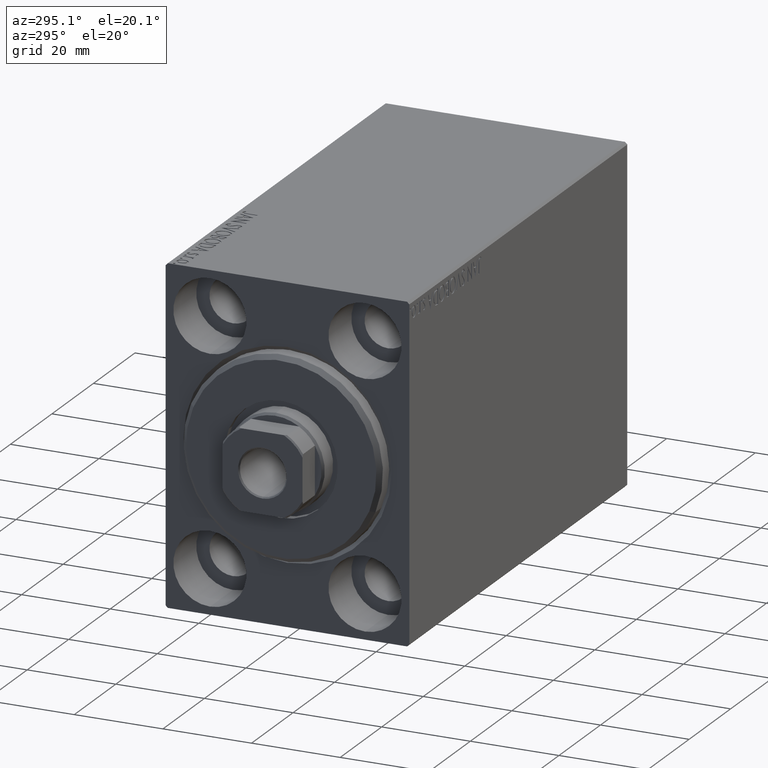
[diagram: clean part render]
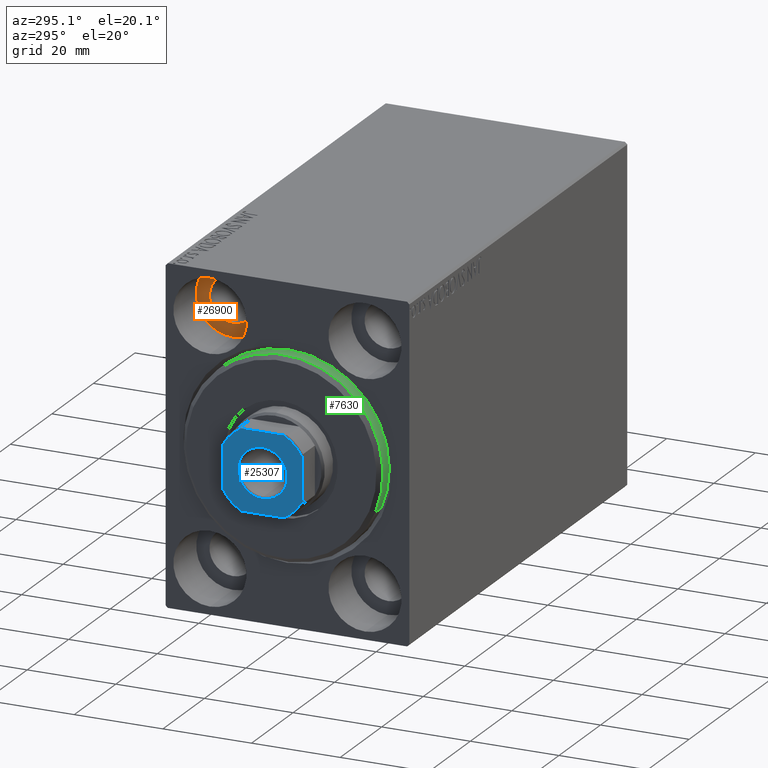
[diagram: same view with three faces highlighted in distinct colors, each labeled with its STEP entity id]
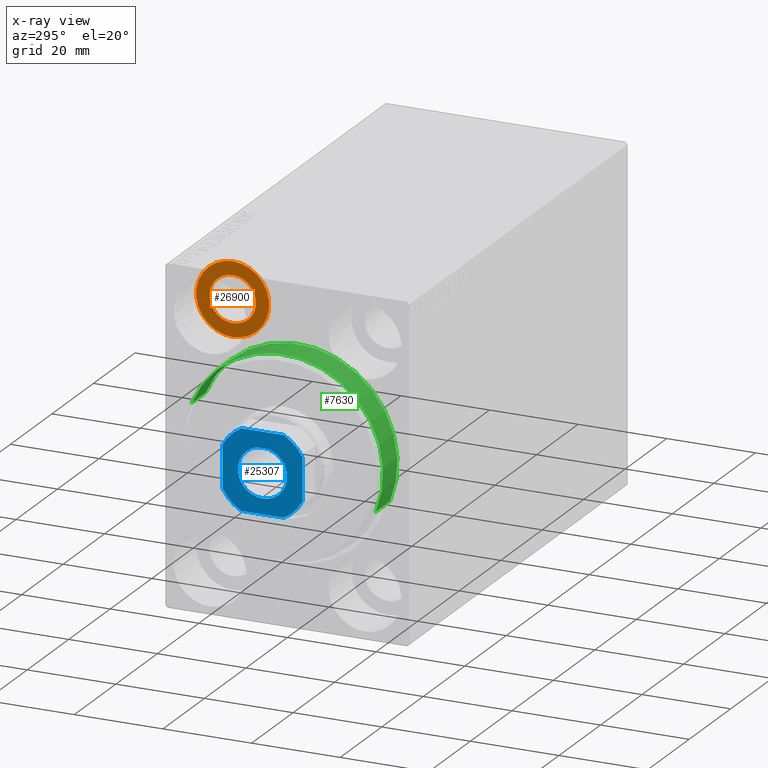
[diagram: x-ray of the same camera — body ghosted, the three highlighted faces saturated]
A machine part, auxiliary view with three faces highlighted in distinct colors.
The next image is the same camera in x-ray (body ghosted, the three faces saturated) — at least one of them is partly hidden behind the body in this view.
Their STEP definitions:

[orange] entity #26900 — the highlighted planar face has unit normal (-1, 0, 0).
#612 = VERTEX_POINT ( 'NONE', #30380 ) ;
#954 = DIRECTION ( 'NONE',  ( -1.000000000000000000, 0.000000000000000000, 0.000000000000000000 ) ) ;
#1435 = EDGE_CURVE ( 'NONE', #25125, #43047, #12740, .T. ) ;
#3131 = ORIENTED_EDGE ( 'NONE', *, *, #1435, .T. ) ;
#4237 = ORIENTED_EDGE ( 'NONE', *, *, #28508, .F. ) ;
#6473 = CIRCLE ( 'NONE', #9955, 5.249999999999997335 ) ;
#6583 = DIRECTION ( 'NONE',  ( 0.000000000000000000, 0.000000000000000000, 1.000000000000000000 ) ) ;
#9287 = CARTESIAN_POINT ( 'NONE',  ( 10.99999999999999645, 17.50000000000000355, 22.25000000000000000 ) ) ;
#9955 = AXIS2_PLACEMENT_3D ( 'NONE', #18353, #24337, #37763 ) ;
#10046 = DIRECTION ( 'NONE',  ( 0.000000000000000000, 0.000000000000000000, 1.000000000000000000 ) ) ;
#11295 = AXIS2_PLACEMENT_3D ( 'NONE', #20205, #29063, #10046 ) ;
#11589 = CARTESIAN_POINT ( 'NONE',  ( 11.00000000000000000, 17.50000000000000355, 35.74999999999999289 ) ) ;
#12740 = CIRCLE ( 'NONE', #26128, 8.249999999999992895 ) ;
#13749 = DIRECTION ( 'NONE',  ( 0.000000000000000000, 0.000000000000000000, 1.000000000000000000 ) ) ;
#15365 = EDGE_CURVE ( 'NONE', #43047, #25125, #20125, .T. ) ;
#16673 = FACE_BOUND ( 'NONE', #43281, .T. ) ;
#18353 = CARTESIAN_POINT ( 'NONE',  ( 10.99999999999999645, 17.50000000000000355, 27.49999999999999645 ) ) ;
#18657 = VERTEX_POINT ( 'NONE', #9287 ) ;
#20125 = CIRCLE ( 'NONE', #34188, 8.249999999999992895 ) ;
#20205 = CARTESIAN_POINT ( 'NONE',  ( 11.00000000000000000, 0.000000000000000000, 0.000000000000000000 ) ) ;
#20414 = EDGE_LOOP ( 'NONE', ( #3131, #25504 ) ) ;
#22676 = CARTESIAN_POINT ( 'NONE',  ( 10.99999999999999645, 17.50000000000000355, 27.49999999999999645 ) ) ;
#22906 = DIRECTION ( 'NONE',  ( -1.000000000000000000, 0.000000000000000000, 0.000000000000000000 ) ) ;
#23517 = FACE_OUTER_BOUND ( 'NONE', #20414, .T. ) ;
#24221 = DIRECTION ( 'NONE',  ( -1.000000000000000000, 0.000000000000000000, 0.000000000000000000 ) ) ;
#24337 = DIRECTION ( 'NONE',  ( -1.000000000000000000, 0.000000000000000000, 0.000000000000000000 ) ) ;
#25125 = VERTEX_POINT ( 'NONE', #11589 ) ;
#25504 = ORIENTED_EDGE ( 'NONE', *, *, #15365, .T. ) ;
#26128 = AXIS2_PLACEMENT_3D ( 'NONE', #34661, #954, #13749 ) ;
#26263 = CARTESIAN_POINT ( 'NONE',  ( 11.00000000000000000, 17.50000000000000355, 27.49999999999999645 ) ) ;
#26570 = CARTESIAN_POINT ( 'NONE',  ( 11.00000000000000000, 17.50000000000000355, 19.25000000000000000 ) ) ;
#26900 = ADVANCED_FACE ( 'NONE', ( #16673, #23517 ), #28844, .T. ) ;
#28508 = EDGE_CURVE ( 'NONE', #18657, #612, #6473, .T. ) ;
#28844 = PLANE ( 'NONE',  #11295 ) ;
#29063 = DIRECTION ( 'NONE',  ( -1.000000000000000000, 0.000000000000000000, 0.000000000000000000 ) ) ;
#30380 = CARTESIAN_POINT ( 'NONE',  ( 10.99999999999999645, 17.50000000000000355, 32.74999999999999289 ) ) ;
#34188 = AXIS2_PLACEMENT_3D ( 'NONE', #26263, #24221, #39477 ) ;
#34661 = CARTESIAN_POINT ( 'NONE',  ( 11.00000000000000000, 17.50000000000000355, 27.49999999999999645 ) ) ;
#35624 = ORIENTED_EDGE ( 'NONE', *, *, #40026, .F. ) ;
#37763 = DIRECTION ( 'NONE',  ( 0.000000000000000000, 0.000000000000000000, 1.000000000000000000 ) ) ;
#39477 = DIRECTION ( 'NONE',  ( 0.000000000000000000, 0.000000000000000000, 1.000000000000000000 ) ) ;
#39677 = CIRCLE ( 'NONE', #40380, 5.249999999999997335 ) ;
#40026 = EDGE_CURVE ( 'NONE', #612, #18657, #39677, .T. ) ;
#40380 = AXIS2_PLACEMENT_3D ( 'NONE', #22676, #22906, #6583 ) ;
#43047 = VERTEX_POINT ( 'NONE', #26570 ) ;
#43281 = EDGE_LOOP ( 'NONE', ( #35624, #4237 ) ) ;

[blue] entity #25307 — the highlighted planar face has unit normal (-1, 0, 0).
#274 = DIRECTION ( 'NONE',  ( -0.000000000000000000, 0.000000000000000000, 1.000000000000000000 ) ) ;
#1874 = DIRECTION ( 'NONE',  ( 1.000000000000000000, 0.000000000000000000, 0.000000000000000000 ) ) ;
#2128 = VERTEX_POINT ( 'NONE', #4592 ) ;
#3076 = AXIS2_PLACEMENT_3D ( 'NONE', #24730, #14578, #8834 ) ;
#3945 = DIRECTION ( 'NONE',  ( 1.000000000000000000, 0.000000000000000000, 0.000000000000000000 ) ) ;
#4029 = EDGE_CURVE ( 'NONE', #9602, #25330, #12808, .T. ) ;
#4187 = VERTEX_POINT ( 'NONE', #34777 ) ;
#4215 = CIRCLE ( 'NONE', #41469, 10.19999999999997442 ) ;
#4447 = AXIS2_PLACEMENT_3D ( 'NONE', #8234, #11966, #22342 ) ;
#4592 = CARTESIAN_POINT ( 'NONE',  ( 9.000000000000001776, -4.799999999999946532, 107.0000000000000142 ) ) ;
#4689 = CARTESIAN_POINT ( 'NONE',  ( -8.999999999999998224, -9.000000000000001776, 107.0000000000000142 ) ) ;
#5046 = CARTESIAN_POINT ( 'NONE',  ( 8.999999999999998224, 8.999999999999998224, 107.0000000000000142 ) ) ;
#5579 = DIRECTION ( 'NONE',  ( 1.927470528863119049E-16, -1.000000000000000000, 0.000000000000000000 ) ) ;
#6738 = DIRECTION ( 'NONE',  ( -0.000000000000000000, 0.000000000000000000, 1.000000000000000000 ) ) ;
#6843 = EDGE_CURVE ( 'NONE', #2128, #19833, #28185, .T. ) ;
#6896 = VERTEX_POINT ( 'NONE', #32811 ) ;
#7461 = CARTESIAN_POINT ( 'NONE',  ( 0.000000000000000000, 0.000000000000000000, 107.0000000000000142 ) ) ;
#7927 = VECTOR ( 'NONE', #18497, 1000.000000000000000 ) ;
#8234 = CARTESIAN_POINT ( 'NONE',  ( 0.000000000000000000, 0.000000000000000000, 107.0000000000000142 ) ) ;
#8413 = EDGE_CURVE ( 'NONE', #32368, #12194, #28477, .T. ) ;
#8834 = DIRECTION ( 'NONE',  ( 1.000000000000000000, 0.000000000000000000, 0.000000000000000000 ) ) ;
#9602 = VERTEX_POINT ( 'NONE', #29535 ) ;
#10890 = AXIS2_PLACEMENT_3D ( 'NONE', #11047, #274, #13714 ) ;
#11047 = CARTESIAN_POINT ( 'NONE',  ( 0.000000000000000000, 0.000000000000000000, 107.0000000000000142 ) ) ;
#11864 = ORIENTED_EDGE ( 'NONE', *, *, #42154, .T. ) ;
#11966 = DIRECTION ( 'NONE',  ( -0.000000000000000000, 0.000000000000000000, 1.000000000000000000 ) ) ;
#12194 = VERTEX_POINT ( 'NONE', #38905 ) ;
#12220 = ORIENTED_EDGE ( 'NONE', *, *, #13463, .T. ) ;
#12433 = CARTESIAN_POINT ( 'NONE',  ( 0.000000000000000000, 0.000000000000000000, 107.0000000000000142 ) ) ;
#12453 = ORIENTED_EDGE ( 'NONE', *, *, #38698, .T. ) ;
#12808 = CIRCLE ( 'NONE', #24086, 10.19999999999999929 ) ;
#13463 = EDGE_CURVE ( 'NONE', #25330, #33126, #32255, .T. ) ;
#13714 = DIRECTION ( 'NONE',  ( 1.000000000000000000, 0.000000000000000000, 0.000000000000000000 ) ) ;
#14533 = ORIENTED_EDGE ( 'NONE', *, *, #23994, .T. ) ;
#14578 = DIRECTION ( 'NONE',  ( 0.000000000000000000, -0.000000000000000000, -1.000000000000000000 ) ) ;
#15314 = CARTESIAN_POINT ( 'NONE',  ( -9.000000000000001776, 8.999999999999998224, 107.0000000000000142 ) ) ;
#15492 = AXIS2_PLACEMENT_3D ( 'NONE', #24144, #6738, #37574 ) ;
#15703 = VECTOR ( 'NONE', #18134, 1000.000000000000000 ) ;
#17092 = PLANE ( 'NONE',  #15492 ) ;
#17523 = FACE_BOUND ( 'NONE', #37635, .T. ) ;
#17585 = CIRCLE ( 'NONE', #42197, 5.550000000000027356 ) ;
#18134 = DIRECTION ( 'NONE',  ( 1.000000000000000000, 0.000000000000000000, 0.000000000000000000 ) ) ;
#18208 = EDGE_CURVE ( 'NONE', #12194, #2128, #4215, .T. ) ;
#18497 = DIRECTION ( 'NONE',  ( -1.927470528863119049E-16, 1.000000000000000000, -0.000000000000000000 ) ) ;
#19371 = ORIENTED_EDGE ( 'NONE', *, *, #18208, .T. ) ;
#19833 = VERTEX_POINT ( 'NONE', #41483 ) ;
#21477 = CARTESIAN_POINT ( 'NONE',  ( -9.000000000000001776, 4.799999999999996270, 107.0000000000000142 ) ) ;
#22342 = DIRECTION ( 'NONE',  ( 1.000000000000000000, 0.000000000000000000, 0.000000000000000000 ) ) ;
#22901 = ORIENTED_EDGE ( 'NONE', *, *, #8413, .T. ) ;
#23804 = ORIENTED_EDGE ( 'NONE', *, *, #38357, .T. ) ;
#23994 = EDGE_CURVE ( 'NONE', #6896, #37533, #17585, .T. ) ;
#24086 = AXIS2_PLACEMENT_3D ( 'NONE', #32391, #32180, #42738 ) ;
#24144 = CARTESIAN_POINT ( 'NONE',  ( 0.000000000000000000, 0.000000000000000000, 107.0000000000000142 ) ) ;
#24730 = CARTESIAN_POINT ( 'NONE',  ( 0.000000000000000000, 0.000000000000000000, 107.0000000000000142 ) ) ;
#25307 = ADVANCED_FACE ( 'NONE', ( #17523, #27645 ), #17092, .T. ) ;
#25330 = VERTEX_POINT ( 'NONE', #21477 ) ;
#27464 = CARTESIAN_POINT ( 'NONE',  ( -8.999999999999998224, -4.799999999999937650, 107.0000000000000142 ) ) ;
#27645 = FACE_OUTER_BOUND ( 'NONE', #28924, .T. ) ;
#28185 = LINE ( 'NONE', #5046, #7927 ) ;
#28314 = ORIENTED_EDGE ( 'NONE', *, *, #6843, .T. ) ;
#28477 = LINE ( 'NONE', #4689, #15703 ) ;
#28752 = DIRECTION ( 'NONE',  ( -1.000000000000000000, -0.000000000000000000, -0.000000000000000000 ) ) ;
#28924 = EDGE_LOOP ( 'NONE', ( #28314, #23804, #29882, #35601, #12220, #11864, #22901, #19371 ) ) ;
#29081 = CIRCLE ( 'NONE', #3076, 5.550000000000027356 ) ;
#29535 = CARTESIAN_POINT ( 'NONE',  ( -4.800000000000001599, 8.999999999999998224, 107.0000000000000142 ) ) ;
#29882 = ORIENTED_EDGE ( 'NONE', *, *, #37819, .T. ) ;
#32180 = DIRECTION ( 'NONE',  ( -0.000000000000000000, 0.000000000000000000, 1.000000000000000000 ) ) ;
#32255 = LINE ( 'NONE', #35766, #39777 ) ;
#32368 = VERTEX_POINT ( 'NONE', #36730 ) ;
#32391 = CARTESIAN_POINT ( 'NONE',  ( 0.000000000000000000, 0.000000000000000000, 107.0000000000000142 ) ) ;
#32811 = CARTESIAN_POINT ( 'NONE',  ( 5.550000000000027356, 0.000000000000000000, 107.0000000000000142 ) ) ;
#33126 = VERTEX_POINT ( 'NONE', #27464 ) ;
#34777 = CARTESIAN_POINT ( 'NONE',  ( 4.799999999999950084, 8.999999999999998224, 107.0000000000000142 ) ) ;
#35601 = ORIENTED_EDGE ( 'NONE', *, *, #4029, .T. ) ;
#35766 = CARTESIAN_POINT ( 'NONE',  ( -9.000000000000001776, 8.999999999999998224, 107.0000000000000142 ) ) ;
#35792 = LINE ( 'NONE', #15314, #37623 ) ;
#36125 = CIRCLE ( 'NONE', #4447, 10.19999999999997442 ) ;
#36730 = CARTESIAN_POINT ( 'NONE',  ( -4.799999999999934097, -9.000000000000001776, 107.0000000000000142 ) ) ;
#37430 = DIRECTION ( 'NONE',  ( 0.000000000000000000, -0.000000000000000000, -1.000000000000000000 ) ) ;
#37533 = VERTEX_POINT ( 'NONE', #41579 ) ;
#37574 = DIRECTION ( 'NONE',  ( 1.000000000000000000, 0.000000000000000000, 0.000000000000000000 ) ) ;
#37623 = VECTOR ( 'NONE', #28752, 1000.000000000000000 ) ;
#37635 = EDGE_LOOP ( 'NONE', ( #14533, #12453 ) ) ;
#37819 = EDGE_CURVE ( 'NONE', #4187, #9602, #35792, .T. ) ;
#38357 = EDGE_CURVE ( 'NONE', #19833, #4187, #36125, .T. ) ;
#38698 = EDGE_CURVE ( 'NONE', #37533, #6896, #29081, .T. ) ;
#38905 = CARTESIAN_POINT ( 'NONE',  ( 4.799999999999944755, -9.000000000000001776, 107.0000000000000142 ) ) ;
#39777 = VECTOR ( 'NONE', #5579, 1000.000000000000000 ) ;
#41469 = AXIS2_PLACEMENT_3D ( 'NONE', #12433, #42621, #1874 ) ;
#41483 = CARTESIAN_POINT ( 'NONE',  ( 8.999999999999998224, 4.799999999999949196, 107.0000000000000142 ) ) ;
#41579 = CARTESIAN_POINT ( 'NONE',  ( -5.550000000000027356, 6.796789735267844307E-16, 107.0000000000000142 ) ) ;
#41841 = CIRCLE ( 'NONE', #10890, 10.19999999999996909 ) ;
#42154 = EDGE_CURVE ( 'NONE', #33126, #32368, #41841, .T. ) ;
#42197 = AXIS2_PLACEMENT_3D ( 'NONE', #7461, #37430, #3945 ) ;
#42621 = DIRECTION ( 'NONE',  ( -0.000000000000000000, 0.000000000000000000, 1.000000000000000000 ) ) ;
#42738 = DIRECTION ( 'NONE',  ( 1.000000000000000000, 0.000000000000000000, 0.000000000000000000 ) ) ;

[green] entity #7630 — the highlighted cylindrical surface (partial cylindrical patch) has radius 22.5 mm, axis along (1, 0, 0).
#83 = VERTEX_POINT ( 'NONE', #24743 ) ;
#1085 = DIRECTION ( 'NONE',  ( -1.000000000000000000, -0.000000000000000000, -0.000000000000000000 ) ) ;
#1368 = CARTESIAN_POINT ( 'NONE',  ( 3.000000000000000000, 0.000000000000000000, 0.000000000000000000 ) ) ;
#2381 = CIRCLE ( 'NONE', #35469, 22.50000000000000355 ) ;
#2841 = LINE ( 'NONE', #16276, #27051 ) ;
#6632 = DIRECTION ( 'NONE',  ( -1.000000000000000000, 0.000000000000000000, 0.000000000000000000 ) ) ;
#7630 = ADVANCED_FACE ( 'NONE', ( #40834 ), #14163, .T. ) ;
#8938 = CARTESIAN_POINT ( 'NONE',  ( -5.000000000000000000, 0.000000000000000000, 0.000000000000000000 ) ) ;
#9604 = ORIENTED_EDGE ( 'NONE', *, *, #36194, .T. ) ;
#12081 = VERTEX_POINT ( 'NONE', #41777 ) ;
#13175 = EDGE_CURVE ( 'NONE', #21054, #83, #34797, .T. ) ;
#14163 = CYLINDRICAL_SURFACE ( 'NONE', #41710, 22.50000000000000355 ) ;
#14229 = CARTESIAN_POINT ( 'NONE',  ( 1.999999999999999112, 2.755455298081545172E-15, -22.50000000000000355 ) ) ;
#14381 = DIRECTION ( 'NONE',  ( 0.000000000000000000, 0.000000000000000000, 1.000000000000000000 ) ) ;
#16276 = CARTESIAN_POINT ( 'NONE',  ( 3.000000000000000000, 2.755455298081545172E-15, -22.50000000000000355 ) ) ;
#17698 = DIRECTION ( 'NONE',  ( -1.000000000000000000, -0.000000000000000000, -0.000000000000000000 ) ) ;
#20931 = CARTESIAN_POINT ( 'NONE',  ( 3.000000000000000000, 0.000000000000000000, 22.50000000000000355 ) ) ;
#21054 = VERTEX_POINT ( 'NONE', #26232 ) ;
#23060 = DIRECTION ( 'NONE',  ( -1.000000000000000000, 0.000000000000000000, 0.000000000000000000 ) ) ;
#24278 = VERTEX_POINT ( 'NONE', #14229 ) ;
#24743 = CARTESIAN_POINT ( 'NONE',  ( -5.000000000000000000, 0.000000000000000000, 22.50000000000000355 ) ) ;
#26232 = CARTESIAN_POINT ( 'NONE',  ( -5.000000000000000000, 2.755455298081545172E-15, -22.50000000000000355 ) ) ;
#26247 = DIRECTION ( 'NONE',  ( 0.000000000000000000, 0.000000000000000000, -1.000000000000000000 ) ) ;
#27051 = VECTOR ( 'NONE', #29722, 1000.000000000000000 ) ;
#27650 = ORIENTED_EDGE ( 'NONE', *, *, #13175, .F. ) ;
#29722 = DIRECTION ( 'NONE',  ( -1.000000000000000000, -0.000000000000000000, -0.000000000000000000 ) ) ;
#30032 = EDGE_CURVE ( 'NONE', #12081, #83, #31267, .T. ) ;
#31267 = LINE ( 'NONE', #20931, #32522 ) ;
#32522 = VECTOR ( 'NONE', #1085, 1000.000000000000000 ) ;
#33702 = EDGE_LOOP ( 'NONE', ( #39412, #9604, #42366, #27650 ) ) ;
#34797 = CIRCLE ( 'NONE', #40441, 22.50000000000000355 ) ;
#35469 = AXIS2_PLACEMENT_3D ( 'NONE', #42979, #6632, #26247 ) ;
#36194 = EDGE_CURVE ( 'NONE', #24278, #12081, #2381, .T. ) ;
#37404 = EDGE_CURVE ( 'NONE', #24278, #21054, #2841, .T. ) ;
#39412 = ORIENTED_EDGE ( 'NONE', *, *, #37404, .F. ) ;
#39794 = DIRECTION ( 'NONE',  ( 0.000000000000000000, 0.000000000000000000, 1.000000000000000000 ) ) ;
#40441 = AXIS2_PLACEMENT_3D ( 'NONE', #8938, #23060, #39794 ) ;
#40834 = FACE_OUTER_BOUND ( 'NONE', #33702, .T. ) ;
#41710 = AXIS2_PLACEMENT_3D ( 'NONE', #1368, #17698, #14381 ) ;
#41777 = CARTESIAN_POINT ( 'NONE',  ( 1.999999999999999112, 0.000000000000000000, 22.50000000000000355 ) ) ;
#42366 = ORIENTED_EDGE ( 'NONE', *, *, #30032, .T. ) ;
#42979 = CARTESIAN_POINT ( 'NONE',  ( 1.999999999999999112, 0.000000000000000000, 0.000000000000000000 ) ) ;